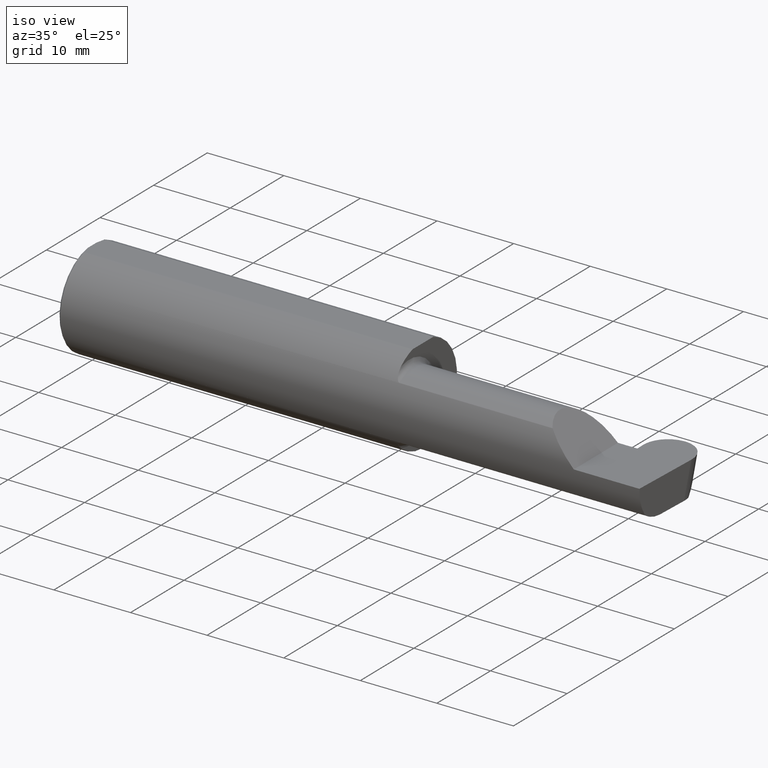
[diagram: clean part render]
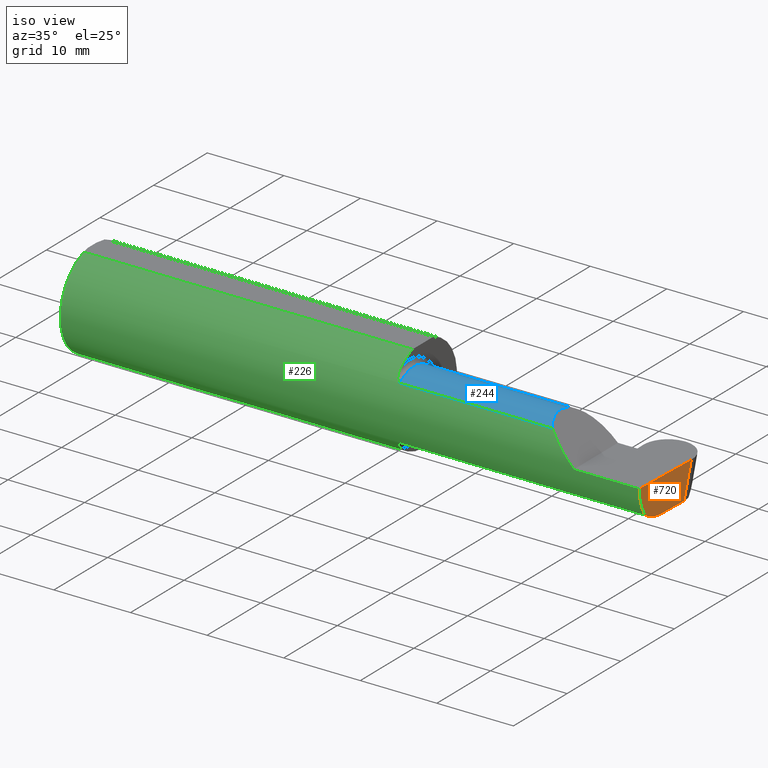
[diagram: same view with three faces highlighted in distinct colors, each labeled with its STEP entity id]
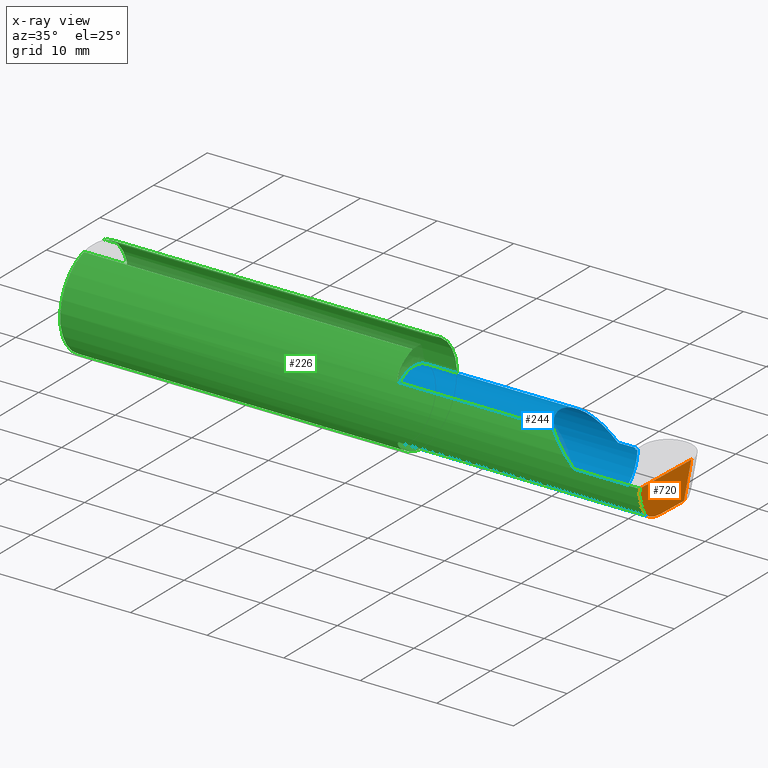
[diagram: x-ray of the same camera — body ghosted, the three highlighted faces saturated]
A machine part, iso view with three faces highlighted in distinct colors.
The next image is the same camera in x-ray (body ghosted, the three faces saturated) — at least one of them is partly hidden behind the body in this view.
Their STEP definitions:

[orange] entity #720 — the highlighted planar face has unit normal (-0.9992, 0.0349, 0.0175).
#6 = VECTOR ( 'NONE', #18, 39.37007874015748854 ) ;
#18 = DIRECTION ( 'NONE',  ( 0.02590004391968268524, 0.2587322210431824976, 0.9656017944882975268 ) ) ;
#24 = DIRECTION ( 'NONE',  ( -0.03489949670249542502, -0.9993908270190959842, 1.222058880457094641E-16 ) ) ;
#27 = CARTESIAN_POINT ( 'NONE',  ( 2.989756814851906697, -0.08644748268070719111, -0.1750000000000000722 ) ) ;
#47 = CARTESIAN_POINT ( 'NONE',  ( 2.999793206199442785, 0.1134305025558126345, 0.000000000000000000 ) ) ;
#76 = LINE ( 'NONE', #27, #345 ) ;
#93 = CARTESIAN_POINT ( 'NONE',  ( 2.999923484675441010, 0.1171611899918090643, 0.000000000000000000 ) ) ;
#108 = PLANE ( 'NONE',  #493 ) ;
#112 = CARTESIAN_POINT ( 'NONE',  ( 2.995099234303557623, 0.06653939388036604619, -0.1750000000000001277 ) ) ;
#137 = EDGE_CURVE ( 'NONE', #745, #559, #229, .T. ) ;
#180 = DIRECTION ( 'NONE',  ( -0.03489949670249543195, -0.9993908270190959842, 0.000000000000000000 ) ) ;
#190 = CARTESIAN_POINT ( 'NONE',  ( 2.986150208451177512, -0.2080850024789288599, -0.1382955322609668858 ) ) ;
#191 = EDGE_CURVE ( 'NONE', #446, #315, #268, .T. ) ;
#194 = CARTESIAN_POINT ( 'NONE',  ( 2.986241469175252128, -0.2498499999999999610, -0.04956584089959703565 ) ) ;
#195 = ORIENTED_EDGE ( 'NONE', *, *, #322, .T. ) ;
#209 = VERTEX_POINT ( 'NONE', #112 ) ;
#211 = DIRECTION ( 'NONE',  ( -0.9992386149554828290, 0.03489418134010812550, 0.01745240643728358798 ) ) ;
#229 = LINE ( 'NONE', #515, #609 ) ;
#267 = CARTESIAN_POINT ( 'NONE',  ( 2.986150208451177512, -0.2080850024789288599, -0.1382955322609668858 ) ) ;
#268 =( BOUNDED_CURVE ( )  B_SPLINE_CURVE ( 3, ( #627, #691, #402, #521 ),
 .UNSPECIFIED., .F., .T. ) 
 B_SPLINE_CURVE_WITH_KNOTS ( ( 4, 4 ),
 ( 0.4474640105399703138, 1.107026853503875419 ),
 .UNSPECIFIED. ) 
 CURVE ( )  GEOMETRIC_REPRESENTATION_ITEM ( )  RATIONAL_B_SPLINE_CURVE ( ( 1.000000000000000000, 0.9640754331822831702, 0.9640754331822831702, 1.000000000000000000 ) ) 
 REPRESENTATION_ITEM ( '' )  );
#285 = ORIENTED_EDGE ( 'NONE', *, *, #191, .T. ) ;
#315 = VERTEX_POINT ( 'NONE', #652 ) ;
#320 = CARTESIAN_POINT ( 'NONE',  ( 2.987107171508847081, -0.2498499999999999888, 0.000000000000000000 ) ) ;
#322 = EDGE_CURVE ( 'NONE', #209, #745, #545, .T. ) ;
#326 = DIRECTION ( 'NONE',  ( -0.03489949670249542502, -0.9993908270190959842, 0.000000000000000000 ) ) ;
#345 = VECTOR ( 'NONE', #24, 39.37007874015748854 ) ;
#346 = ORIENTED_EDGE ( 'NONE', *, *, #560, .F. ) ;
#375 = ORIENTED_EDGE ( 'NONE', *, *, #582, .F. ) ;
#402 = CARTESIAN_POINT ( 'NONE',  ( 2.987885367171879025, -0.1400387324517230192, -0.1750000000000000999 ) ) ;
#446 = VERTEX_POINT ( 'NONE', #267 ) ;
#493 = AXIS2_PLACEMENT_3D ( 'NONE', #93, #211, #326 ) ;
#515 = CARTESIAN_POINT ( 'NONE',  ( 2.999923484675441010, 0.1171611899918090643, 0.000000000000000000 ) ) ;
#519 = EDGE_LOOP ( 'NONE', ( #346, #195, #635, #375, #285 ) ) ;
#521 = CARTESIAN_POINT ( 'NONE',  ( 2.989253867864499092, -0.1008499999999999674, -0.1750000000000000722 ) ) ;
#534 = CARTESIAN_POINT ( 'NONE',  ( 2.999818293584536999, 0.1136811166044124077, 0.0009353043624648335131 ) ) ;
#545 = LINE ( 'NONE', #534, #6 ) ;
#553 = FACE_OUTER_BOUND ( 'NONE', #519, .T. ) ;
#559 = VERTEX_POINT ( 'NONE', #592 ) ;
#560 = EDGE_CURVE ( 'NONE', #209, #315, #76, .T. ) ;
#582 = EDGE_CURVE ( 'NONE', #446, #559, #645, .T. ) ;
#592 = CARTESIAN_POINT ( 'NONE',  ( 2.987107171508847081, -0.2498499999999999888, 0.000000000000000000 ) ) ;
#603 = CARTESIAN_POINT ( 'NONE',  ( 2.985913134503198840, -0.2355204011147991605, -0.09701513151466768792 ) ) ;
#609 = VECTOR ( 'NONE', #180, 39.37007874015748143 ) ;
#627 = CARTESIAN_POINT ( 'NONE',  ( 2.986150208451177512, -0.2080850024789288599, -0.1382955322609668858 ) ) ;
#635 = ORIENTED_EDGE ( 'NONE', *, *, #137, .T. ) ;
#645 =( BOUNDED_CURVE ( )  B_SPLINE_CURVE ( 3, ( #190, #603, #194, #320 ),
 .UNSPECIFIED., .F., .T. ) 
 B_SPLINE_CURVE_WITH_KNOTS ( ( 4, 4 ),
 ( 6.160376845738950280, 6.746954780470608704 ),
 .UNSPECIFIED. ) 
 CURVE ( )  GEOMETRIC_REPRESENTATION_ITEM ( )  RATIONAL_B_SPLINE_CURVE ( ( 1.000000000000000000, 0.9715321379117538569, 0.9715321379117538569, 1.000000000000000000 ) ) 
 REPRESENTATION_ITEM ( '' )  );
#652 = CARTESIAN_POINT ( 'NONE',  ( 2.989253867864499092, -0.1008499999999999674, -0.1750000000000000722 ) ) ;
#691 = CARTESIAN_POINT ( 'NONE',  ( 2.986812263240209653, -0.1771157075472507558, -0.1623092683844332140 ) ) ;
#720 = ADVANCED_FACE ( 'NONE', ( #553 ), #108, .F. ) ;
#745 = VERTEX_POINT ( 'NONE', #47 ) ;

[blue] entity #244 — the highlighted cylindrical surface (partial cylindrical patch) has radius 4.445 mm, axis along (-1, -0, -0).
#2 = VERTEX_POINT ( 'NONE', #100 ) ;
#23 = EDGE_CURVE ( 'NONE', #446, #617, #331, .T. ) ;
#30 = VERTEX_POINT ( 'NONE', #335 ) ;
#34 = ORIENTED_EDGE ( 'NONE', *, *, #167, .T. ) ;
#35 = CARTESIAN_POINT ( 'NONE',  ( 2.409263745716142324, -0.07597241004310675838, 0.2407362542838553388 ) ) ;
#36 = CARTESIAN_POINT ( 'NONE',  ( 1.725000000000000089, -0.1008500000000000646, 0.000000000000000000 ) ) ;
#38 = DIRECTION ( 'NONE',  ( -1.000000000000000000, -6.511907283740594647E-17, -0.000000000000000000 ) ) ;
#40 = DIRECTION ( 'NONE',  ( -1.000000000000000000, -6.511907283740594647E-17, -0.000000000000000000 ) ) ;
#46 = EDGE_LOOP ( 'NONE', ( #597, #557, #632, #403, #34, #198, #602, #364, #417, #152 ) ) ;
#59 = EDGE_CURVE ( 'NONE', #315, #535, #156, .T. ) ;
#64 = VECTOR ( 'NONE', #38, 39.37007874015748143 ) ;
#79 = VECTOR ( 'NONE', #40, 39.37007874015748143 ) ;
#99 = CARTESIAN_POINT ( 'NONE',  ( 1.725000000000000089, -0.2080850024789289432, 0.1382955322609669135 ) ) ;
#100 = CARTESIAN_POINT ( 'NONE',  ( 2.511704467739031887, -0.2080850024789288599, 0.1382955322609669413 ) ) ;
#126 = VECTOR ( 'NONE', #392, 39.37007874015748143 ) ;
#133 = DIRECTION ( 'NONE',  ( -1.000000000000000000, -6.511907283740594647E-17, -0.000000000000000000 ) ) ;
#139 = CARTESIAN_POINT ( 'NONE',  ( 2.753585400763539415, -0.1008500000000000091, -0.1750000000000000444 ) ) ;
#152 = ORIENTED_EDGE ( 'NONE', *, *, #191, .F. ) ;
#156 = LINE ( 'NONE', #161, #729 ) ;
#160 = CARTESIAN_POINT ( 'NONE',  ( 1.700000000000000178, 0.07404339472834149671, -0.006107411922944308742 ) ) ;
#161 = CARTESIAN_POINT ( 'NONE',  ( 3.402190948718818664, -0.1008499999999999674, -0.1750000000000000722 ) ) ;
#167 = EDGE_CURVE ( 'NONE', #212, #30, #240, .T. ) ;
#172 = CARTESIAN_POINT ( 'NONE',  ( 1.700000000000000178, 0.07414999999999995206, 1.592040838891556877E-16 ) ) ;
#177 = FACE_OUTER_BOUND ( 'NONE', #46, .T. ) ;
#191 = EDGE_CURVE ( 'NONE', #446, #315, #268, .T. ) ;
#198 = ORIENTED_EDGE ( 'NONE', *, *, #370, .F. ) ;
#200 = CARTESIAN_POINT ( 'NONE',  ( 2.739220100782099543, 0.07404339472834139957, -0.006107411922948981220 ) ) ;
#206 = CARTESIAN_POINT ( 'NONE',  ( 2.236894750000000265, -0.2080850024789289432, 0.1382955322609668858 ) ) ;
#212 = VERTEX_POINT ( 'NONE', #580 ) ;
#224 = B_SPLINE_CURVE_WITH_KNOTS ( 'NONE', 3,
 ( #419, #434, #669, #441 ),
 .UNSPECIFIED., .F., .F.,
 ( 4, 4 ),
 ( 0.000000000000000000, 1.000000000000000000 ),
 .UNSPECIFIED. ) ;
#236 = VECTOR ( 'NONE', #344, 39.37007874015748143 ) ;
#240 = LINE ( 'NONE', #172, #236 ) ;
#244 = ADVANCED_FACE ( 'NONE', ( #177 ), #422, .T. ) ;
#258 = CARTESIAN_POINT ( 'NONE',  ( 1.725000000000000089, -0.2080850024789288599, -0.1382955322609669135 ) ) ;
#267 = CARTESIAN_POINT ( 'NONE',  ( 2.986150208451177512, -0.2080850024789288599, -0.1382955322609668858 ) ) ;
#268 =( BOUNDED_CURVE ( )  B_SPLINE_CURVE ( 3, ( #627, #691, #402, #521 ),
 .UNSPECIFIED., .F., .T. ) 
 B_SPLINE_CURVE_WITH_KNOTS ( ( 4, 4 ),
 ( 0.4474640105399703138, 1.107026853503875419 ),
 .UNSPECIFIED. ) 
 CURVE ( )  GEOMETRIC_REPRESENTATION_ITEM ( )  RATIONAL_B_SPLINE_CURVE ( ( 1.000000000000000000, 0.9640754331822831702, 0.9640754331822831702, 1.000000000000000000 ) ) 
 REPRESENTATION_ITEM ( '' )  );
#315 = VERTEX_POINT ( 'NONE', #652 ) ;
#331 = LINE ( 'NONE', #615, #64 ) ;
#335 = CARTESIAN_POINT ( 'NONE',  ( 2.739326706053758276, 0.07414999999999984104, 0.000000000000000000 ) ) ;
#337 = LINE ( 'NONE', #160, #79 ) ;
#344 = DIRECTION ( 'NONE',  ( 1.000000000000000000, 6.511907283740594647E-17, 0.000000000000000000 ) ) ;
#364 = ORIENTED_EDGE ( 'NONE', *, *, #566, .F. ) ;
#365 = CARTESIAN_POINT ( 'NONE',  ( 2.753553955298210898, -0.001152430219569880584, -0.1750000000000001277 ) ) ;
#369 = CARTESIAN_POINT ( 'NONE',  ( 1.700000000000000178, -0.1008500000000000646, 0.000000000000000000 ) ) ;
#370 = EDGE_CURVE ( 'NONE', #479, #30, #224, .T. ) ;
#383 = LINE ( 'NONE', #206, #126 ) ;
#388 = VERTEX_POINT ( 'NONE', #99 ) ;
#390 = DIRECTION ( 'NONE',  ( -1.000000000000000000, -0.000000000000000000, -0.000000000000000000 ) ) ;
#392 = DIRECTION ( 'NONE',  ( 1.000000000000000000, 6.511907283740594647E-17, 0.000000000000000000 ) ) ;
#397 =( BOUNDED_CURVE ( )  B_SPLINE_CURVE ( 3, ( #565, #35, #616, #569 ),
 .UNSPECIFIED., .F., .T. ) 
 B_SPLINE_CURVE_WITH_KNOTS ( ( 4, 4 ),
 ( 5.623622464215682015, 7.853981633974482790 ),
 .UNSPECIFIED. ) 
 CURVE ( )  GEOMETRIC_REPRESENTATION_ITEM ( )  RATIONAL_B_SPLINE_CURVE ( ( 1.000000000000000000, 0.6266774836123999437, 0.6266774836123999437, 1.000000000000000000 ) ) 
 REPRESENTATION_ITEM ( '' )  );
#402 = CARTESIAN_POINT ( 'NONE',  ( 2.987885367171879025, -0.1400387324517230192, -0.1750000000000000999 ) ) ;
#403 = ORIENTED_EDGE ( 'NONE', *, *, #740, .T. ) ;
#417 = ORIENTED_EDGE ( 'NONE', *, *, #59, .F. ) ;
#419 = CARTESIAN_POINT ( 'NONE',  ( 2.739220100782099543, 0.07404339472834139957, -0.006107411922948981220 ) ) ;
#422 = CYLINDRICAL_SURFACE ( 'NONE', #654, 0.1750000000000000444 ) ;
#434 = CARTESIAN_POINT ( 'NONE',  ( 2.739255635872652750, 0.07407892981889421802, -0.004071607948632659062 ) ) ;
#438 = DIRECTION ( 'NONE',  ( -1.000000000000000000, -6.511907283740594647E-17, -0.000000000000000000 ) ) ;
#441 = CARTESIAN_POINT ( 'NONE',  ( 2.739326706053758276, 0.07414999999999984104, 0.000000000000000000 ) ) ;
#445 = EDGE_CURVE ( 'NONE', #388, #617, #525, .T. ) ;
#446 = VERTEX_POINT ( 'NONE', #267 ) ;
#479 = VERTEX_POINT ( 'NONE', #200 ) ;
#483 = CARTESIAN_POINT ( 'NONE',  ( 2.750478392166241903, 0.07404339472834139957, -0.006107411922948607387 ) ) ;
#489 = CARTESIAN_POINT ( 'NONE',  ( 2.753585400763539415, -0.1008500000000000091, -0.1750000000000000444 ) ) ;
#512 = VERTEX_POINT ( 'NONE', #648 ) ;
#521 = CARTESIAN_POINT ( 'NONE',  ( 2.989253867864499092, -0.1008499999999999674, -0.1750000000000000722 ) ) ;
#525 = CIRCLE ( 'NONE', #630, 0.1750000000000000444 ) ;
#535 = VERTEX_POINT ( 'NONE', #139 ) ;
#557 = ORIENTED_EDGE ( 'NONE', *, *, #445, .F. ) ;
#563 = DIRECTION ( 'NONE',  ( 0.000000000000000000, -1.000000000000000000, 0.000000000000000000 ) ) ;
#565 = CARTESIAN_POINT ( 'NONE',  ( 2.511704467739031887, -0.2080850024789288599, 0.1382955322609669413 ) ) ;
#566 = EDGE_CURVE ( 'NONE', #535, #512, #601, .T. ) ;
#569 = CARTESIAN_POINT ( 'NONE',  ( 2.650000000000000355, 0.07415000000000000757, 1.592040838891556877E-16 ) ) ;
#580 = CARTESIAN_POINT ( 'NONE',  ( 2.650000000000000355, 0.07415000000000000757, 1.592040838891556877E-16 ) ) ;
#597 = ORIENTED_EDGE ( 'NONE', *, *, #23, .T. ) ;
#601 =( BOUNDED_CURVE ( )  B_SPLINE_CURVE ( 3, ( #489, #365, #711, #483 ),
 .UNSPECIFIED., .F., .F. ) 
 B_SPLINE_CURVE_WITH_KNOTS ( ( 4, 4 ),
 ( 3.159045946109732661, 4.694935687864679963 ),
 .UNSPECIFIED. ) 
 CURVE ( )  GEOMETRIC_REPRESENTATION_ITEM ( )  RATIONAL_B_SPLINE_CURVE ( ( 1.000000000000000000, 0.8128932002257818201, 0.8128932002257818201, 1.000000000000000000 ) ) 
 REPRESENTATION_ITEM ( '' )  );
#602 = ORIENTED_EDGE ( 'NONE', *, *, #682, .F. ) ;
#615 = CARTESIAN_POINT ( 'NONE',  ( 2.236894750000000265, -0.2080850024789289432, -0.1382955322609668858 ) ) ;
#616 = CARTESIAN_POINT ( 'NONE',  ( 2.482823929317965028, 0.07415000000000000757, 0.1671760706820337450 ) ) ;
#617 = VERTEX_POINT ( 'NONE', #258 ) ;
#627 = CARTESIAN_POINT ( 'NONE',  ( 2.986150208451177512, -0.2080850024789288599, -0.1382955322609668858 ) ) ;
#630 = AXIS2_PLACEMENT_3D ( 'NONE', #36, #438, #563 ) ;
#632 = ORIENTED_EDGE ( 'NONE', *, *, #689, .T. ) ;
#641 = DIRECTION ( 'NONE',  ( 0.000000000000000000, -1.000000000000000000, 0.000000000000000000 ) ) ;
#648 = CARTESIAN_POINT ( 'NONE',  ( 2.750478392166241903, 0.07404339472834139957, -0.006107411922948607387 ) ) ;
#652 = CARTESIAN_POINT ( 'NONE',  ( 2.989253867864499092, -0.1008499999999999674, -0.1750000000000000722 ) ) ;
#654 = AXIS2_PLACEMENT_3D ( 'NONE', #369, #133, #641 ) ;
#669 = CARTESIAN_POINT ( 'NONE',  ( 2.739291170963205069, 0.07411446490944702259, -0.002035803974316329531 ) ) ;
#682 = EDGE_CURVE ( 'NONE', #512, #479, #337, .T. ) ;
#689 = EDGE_CURVE ( 'NONE', #388, #2, #383, .T. ) ;
#691 = CARTESIAN_POINT ( 'NONE',  ( 2.986812263240209653, -0.1771157075472507558, -0.1623092683844332140 ) ) ;
#711 = CARTESIAN_POINT ( 'NONE',  ( 2.752279901668355677, 0.07056399972053564729, -0.1057442486376066609 ) ) ;
#729 = VECTOR ( 'NONE', #390, 39.37007874015748143 ) ;
#740 = EDGE_CURVE ( 'NONE', #2, #212, #397, .T. ) ;

[green] entity #226 — the highlighted cylindrical surface (partial cylindrical patch) has radius 6.3462 mm, axis along (-1, -0, -0).
#2 = VERTEX_POINT ( 'NONE', #100 ) ;
#7 = CIRCLE ( 'NONE', #183, 0.2498499999999999888 ) ;
#8 = CARTESIAN_POINT ( 'NONE',  ( 1.700000000000000178, -0.1616050818046604054, -0.1905487340154980724 ) ) ;
#10 = CARTESIAN_POINT ( 'NONE',  ( 0.000000000000000000, -0.07650098038587520299, 0.2378499999999998671 ) ) ;
#11 =( BOUNDED_CURVE ( )  B_SPLINE_CURVE ( 3, ( #82, #660, #498, #203 ),
 .UNSPECIFIED., .F., .T. ) 
 B_SPLINE_CURVE_WITH_KNOTS ( ( 4, 4 ),
 ( 4.712388980384689674, 5.298966915116348986 ),
 .UNSPECIFIED. ) 
 CURVE ( )  GEOMETRIC_REPRESENTATION_ITEM ( )  RATIONAL_B_SPLINE_CURVE ( ( 1.000000000000000000, 0.9715321379117536349, 0.9715321379117536349, 1.000000000000000000 ) ) 
 REPRESENTATION_ITEM ( '' )  );
#14 = CARTESIAN_POINT ( 'NONE',  ( 1.701385488563270210, -0.1808287530430325030, -0.1728790649396287071 ) ) ;
#17 = B_SPLINE_CURVE_WITH_KNOTS ( 'NONE', 3,
 ( #590, #310, #484, #538, #709, #83, #531, #701, #657, #14, #304, #478 ),
 .UNSPECIFIED., .F., .F.,
 ( 4, 2, 2, 2, 2, 4 ),
 ( 1.964491429041408615E-07, 0.0001260981470478429213, 0.0002519998449527816628, 0.0005038032407626452137, 0.001007410032382372424, 0.002014623615621820123 ),
 .UNSPECIFIED. ) ;
#22 = ORIENTED_EDGE ( 'NONE', *, *, #376, .T. ) ;
#23 = EDGE_CURVE ( 'NONE', #446, #617, #331, .T. ) ;
#38 = DIRECTION ( 'NONE',  ( -1.000000000000000000, -6.511907283740594647E-17, -0.000000000000000000 ) ) ;
#45 = CARTESIAN_POINT ( 'NONE',  ( 1.700000000000000178, 0.07650098038587520299, 0.2378499999999998671 ) ) ;
#64 = VECTOR ( 'NONE', #38, 39.37007874015748143 ) ;
#69 = EDGE_CURVE ( 'NONE', #274, #164, #677, .T. ) ;
#77 = AXIS2_PLACEMENT_3D ( 'NONE', #738, #338, #552 ) ;
#82 = CARTESIAN_POINT ( 'NONE',  ( 2.650000000000000355, -0.2498499999999999610, 4.286263797015729199E-17 ) ) ;
#83 = CARTESIAN_POINT ( 'NONE',  ( 1.714302603425052807, -0.2041009206016211885, -0.1441313430770041204 ) ) ;
#91 = B_SPLINE_CURVE_WITH_KNOTS ( 'NONE', 3,
 ( #718, #440, #199, #129, #362, #501, #275, #98, #561, #726, #455, #329, #339, #504 ),
 .UNSPECIFIED., .F., .F.,
 ( 4, 2, 2, 2, 2, 2, 4 ),
 ( 0.0003834465838148152454, 0.0008781406165086708474, 0.001372834649202526449, 0.001867528681896382051, 0.002114875698243305190, 0.002238549206416759821, 0.002362222714590214018 ),
 .UNSPECIFIED. ) ;
#94 = EDGE_CURVE ( 'NONE', #539, #306, #529, .T. ) ;
#98 = CARTESIAN_POINT ( 'NONE',  ( 1.712616400345755130, -0.2024684335577101590, 0.1464246884265639759 ) ) ;
#99 = CARTESIAN_POINT ( 'NONE',  ( 1.725000000000000089, -0.2080850024789289432, 0.1382955322609669135 ) ) ;
#100 = CARTESIAN_POINT ( 'NONE',  ( 2.511704467739031887, -0.2080850024789288599, 0.1382955322609669413 ) ) ;
#119 = CARTESIAN_POINT ( 'NONE',  ( 0.000000000000000000, 0.000000000000000000, 0.000000000000000000 ) ) ;
#125 = VECTOR ( 'NONE', #250, 39.37007874015748143 ) ;
#126 = VECTOR ( 'NONE', #392, 39.37007874015748143 ) ;
#129 = CARTESIAN_POINT ( 'NONE',  ( 1.701849548162864600, -0.1805300287242673773, 0.1728462070311780896 ) ) ;
#146 = EDGE_CURVE ( 'NONE', #559, #423, #163, .T. ) ;
#157 = DIRECTION ( 'NONE',  ( 1.000000000000000000, 6.511907283740594647E-17, 0.000000000000000000 ) ) ;
#163 = LINE ( 'NONE', #342, #273 ) ;
#164 = VERTEX_POINT ( 'NONE', #625 ) ;
#168 = DIRECTION ( 'NONE',  ( 1.000000000000000000, 0.000000000000000000, 0.000000000000000000 ) ) ;
#170 = VECTOR ( 'NONE', #168, 39.37007874015748143 ) ;
#183 = AXIS2_PLACEMENT_3D ( 'NONE', #722, #606, #428 ) ;
#190 = CARTESIAN_POINT ( 'NONE',  ( 2.986150208451177512, -0.2080850024789288599, -0.1382955322609668858 ) ) ;
#194 = CARTESIAN_POINT ( 'NONE',  ( 2.986241469175252128, -0.2498499999999999610, -0.04956584089959703565 ) ) ;
#199 = CARTESIAN_POINT ( 'NONE',  ( 1.700367168219774516, -0.1713400252854603290, 0.1819601557798506408 ) ) ;
#203 = CARTESIAN_POINT ( 'NONE',  ( 2.511704467739031887, -0.2080850024789288599, 0.1382955322609669413 ) ) ;
#206 = CARTESIAN_POINT ( 'NONE',  ( 2.236894750000000265, -0.2080850024789289432, 0.1382955322609668858 ) ) ;
#226 = ADVANCED_FACE ( 'NONE', ( #634 ), #697, .T. ) ;
#230 = VERTEX_POINT ( 'NONE', #8 ) ;
#234 = ORIENTED_EDGE ( 'NONE', *, *, #694, .F. ) ;
#246 = ORIENTED_EDGE ( 'NONE', *, *, #620, .T. ) ;
#248 = ORIENTED_EDGE ( 'NONE', *, *, #23, .F. ) ;
#250 = DIRECTION ( 'NONE',  ( -1.000000000000000000, -0.000000000000000000, -0.000000000000000000 ) ) ;
#258 = CARTESIAN_POINT ( 'NONE',  ( 1.725000000000000089, -0.2080850024789288599, -0.1382955322609669135 ) ) ;
#260 = CARTESIAN_POINT ( 'NONE',  ( 0.009999999999999856226, 0.000000000000000000, 0.000000000000000000 ) ) ;
#267 = CARTESIAN_POINT ( 'NONE',  ( 2.986150208451177512, -0.2080850024789288599, -0.1382955322609668858 ) ) ;
#269 = EDGE_LOOP ( 'NONE', ( #248, #475, #382, #246, #707, #628, #371, #311, #22, #451, #278, #234, #604 ) ) ;
#270 = EDGE_CURVE ( 'NONE', #399, #164, #359, .T. ) ;
#273 = VECTOR ( 'NONE', #463, 39.37007874015748143 ) ;
#274 = VERTEX_POINT ( 'NONE', #374 ) ;
#275 = CARTESIAN_POINT ( 'NONE',  ( 1.708182335268384477, -0.1972192205116130026, 0.1535061413537210928 ) ) ;
#278 = ORIENTED_EDGE ( 'NONE', *, *, #270, .F. ) ;
#292 = DIRECTION ( 'NONE',  ( -1.000000000000000000, -0.000000000000000000, -0.000000000000000000 ) ) ;
#303 = EDGE_CURVE ( 'NONE', #617, #230, #17, .T. ) ;
#304 = CARTESIAN_POINT ( 'NONE',  ( 1.699999999999999956, -0.1716188362992553673, -0.1820560320165480472 ) ) ;
#306 = VERTEX_POINT ( 'NONE', #318 ) ;
#310 = CARTESIAN_POINT ( 'NONE',  ( 1.723318040126429640, -0.2080850024789289987, -0.1382955322609668303 ) ) ;
#311 = ORIENTED_EDGE ( 'NONE', *, *, #94, .F. ) ;
#318 = CARTESIAN_POINT ( 'NONE',  ( 1.700000000000000178, -0.07650098038587523075, 0.2378499999999998671 ) ) ;
#320 = CARTESIAN_POINT ( 'NONE',  ( 2.987107171508847081, -0.2498499999999999888, 0.000000000000000000 ) ) ;
#329 = CARTESIAN_POINT ( 'NONE',  ( 1.721718393013768722, -0.2077830475237240626, 0.1387513848711937892 ) ) ;
#331 = LINE ( 'NONE', #615, #64 ) ;
#338 = DIRECTION ( 'NONE',  ( 1.000000000000000000, 0.000000000000000000, 0.000000000000000000 ) ) ;
#339 = CARTESIAN_POINT ( 'NONE',  ( 1.723329956043142763, -0.2080850024798589493, 0.1382955322595676717 ) ) ;
#342 = CARTESIAN_POINT ( 'NONE',  ( 4.499279347985562423E-32, -0.2498499999999999610, 3.673940397442054938E-16 ) ) ;
#359 = LINE ( 'NONE', #496, #125 ) ;
#362 = CARTESIAN_POINT ( 'NONE',  ( 1.702968662030528879, -0.1849684355203377317, 0.1680843977756269203 ) ) ;
#371 = ORIENTED_EDGE ( 'NONE', *, *, #589, .F. ) ;
#374 = CARTESIAN_POINT ( 'NONE',  ( 0.009999999999999856226, 0.000000000000000000, -0.2498499999999999888 ) ) ;
#376 = EDGE_CURVE ( 'NONE', #539, #274, #584, .T. ) ;
#382 = ORIENTED_EDGE ( 'NONE', *, *, #146, .T. ) ;
#383 = LINE ( 'NONE', #206, #126 ) ;
#387 = CARTESIAN_POINT ( 'NONE',  ( 1.700000000000000178, -0.1616050818046604054, 0.1905487340154980724 ) ) ;
#388 = VERTEX_POINT ( 'NONE', #99 ) ;
#392 = DIRECTION ( 'NONE',  ( 1.000000000000000000, 6.511907283740594647E-17, 0.000000000000000000 ) ) ;
#399 = VERTEX_POINT ( 'NONE', #45 ) ;
#423 = VERTEX_POINT ( 'NONE', #510 ) ;
#428 = DIRECTION ( 'NONE',  ( 0.000000000000000000, 1.000000000000000000, 0.000000000000000000 ) ) ;
#440 = CARTESIAN_POINT ( 'NONE',  ( 1.700000000000000178, -0.1665641037263009827, 0.1863429692936361959 ) ) ;
#446 = VERTEX_POINT ( 'NONE', #267 ) ;
#451 = ORIENTED_EDGE ( 'NONE', *, *, #69, .T. ) ;
#455 = CARTESIAN_POINT ( 'NONE',  ( 1.718876997637614812, -0.2068363917296599519, 0.1401586554522230854 ) ) ;
#458 = DIRECTION ( 'NONE',  ( 0.000000000000000000, 1.000000000000000000, 0.000000000000000000 ) ) ;
#463 = DIRECTION ( 'NONE',  ( -1.000000000000000000, -0.000000000000000000, -0.000000000000000000 ) ) ;
#475 = ORIENTED_EDGE ( 'NONE', *, *, #582, .T. ) ;
#478 = CARTESIAN_POINT ( 'NONE',  ( 1.700000000000000178, -0.1616050818046604054, -0.1905487340154980724 ) ) ;
#484 = CARTESIAN_POINT ( 'NONE',  ( 1.721700027347579320, -0.2077785947292767055, -0.1387580622202827241 ) ) ;
#494 = CARTESIAN_POINT ( 'NONE',  ( 0.009999999999999856226, -0.07650098038587520299, 0.2378499999999998671 ) ) ;
#496 = CARTESIAN_POINT ( 'NONE',  ( 0.000000000000000000, 0.07650098038587520299, 0.2378499999999998671 ) ) ;
#498 = CARTESIAN_POINT ( 'NONE',  ( 2.552984868485331571, -0.2355204011147991605, 0.09701513151466779894 ) ) ;
#501 = CARTESIAN_POINT ( 'NONE',  ( 1.706159563508734101, -0.1933019864360848161, 0.1584298865564832404 ) ) ;
#504 = CARTESIAN_POINT ( 'NONE',  ( 1.725000000000000089, -0.2080850024789289432, 0.1382955322609669135 ) ) ;
#510 = CARTESIAN_POINT ( 'NONE',  ( 2.650000000000000355, -0.2498499999999999610, 4.286263797015729199E-17 ) ) ;
#524 = DIRECTION ( 'NONE',  ( 0.000000000000000000, 0.000000000000000000, 1.000000000000000000 ) ) ;
#529 = LINE ( 'NONE', #10, #170 ) ;
#531 = CARTESIAN_POINT ( 'NONE',  ( 1.712579853086619641, -0.2024300470081734638, -0.1464774911482687458 ) ) ;
#536 = CIRCLE ( 'NONE', #679, 0.2498499999999999888 ) ;
#538 = CARTESIAN_POINT ( 'NONE',  ( 1.718863362722770960, -0.2068301641248768974, -0.1401678546132361647 ) ) ;
#539 = VERTEX_POINT ( 'NONE', #494 ) ;
#552 = DIRECTION ( 'NONE',  ( 0.000000000000000000, 0.000000000000000000, -1.000000000000000000 ) ) ;
#559 = VERTEX_POINT ( 'NONE', #592 ) ;
#561 = CARTESIAN_POINT ( 'NONE',  ( 1.714343523383978329, -0.2041337200786081663, 0.1440846171672512943 ) ) ;
#562 = AXIS2_PLACEMENT_3D ( 'NONE', #119, #292, #524 ) ;
#582 = EDGE_CURVE ( 'NONE', #446, #559, #645, .T. ) ;
#584 = CIRCLE ( 'NONE', #716, 0.2498499999999999888 ) ;
#589 = EDGE_CURVE ( 'NONE', #306, #659, #7, .T. ) ;
#590 = CARTESIAN_POINT ( 'NONE',  ( 1.725000000000000089, -0.2080850024789288599, -0.1382955322609669135 ) ) ;
#592 = CARTESIAN_POINT ( 'NONE',  ( 2.987107171508847081, -0.2498499999999999888, 0.000000000000000000 ) ) ;
#603 = CARTESIAN_POINT ( 'NONE',  ( 2.985913134503198840, -0.2355204011147991605, -0.09701513151466768792 ) ) ;
#604 = ORIENTED_EDGE ( 'NONE', *, *, #303, .F. ) ;
#606 = DIRECTION ( 'NONE',  ( 1.000000000000000000, 6.511907283740594647E-17, 0.000000000000000000 ) ) ;
#615 = CARTESIAN_POINT ( 'NONE',  ( 2.236894750000000265, -0.2080850024789289432, -0.1382955322609668858 ) ) ;
#617 = VERTEX_POINT ( 'NONE', #258 ) ;
#618 = DIRECTION ( 'NONE',  ( 1.000000000000000000, 0.000000000000000000, 0.000000000000000000 ) ) ;
#620 = EDGE_CURVE ( 'NONE', #423, #2, #11, .T. ) ;
#625 = CARTESIAN_POINT ( 'NONE',  ( 0.009999999999999856226, 0.07650098038587520299, 0.2378499999999998671 ) ) ;
#626 = EDGE_CURVE ( 'NONE', #659, #388, #91, .T. ) ;
#628 = ORIENTED_EDGE ( 'NONE', *, *, #626, .F. ) ;
#634 = FACE_OUTER_BOUND ( 'NONE', #269, .T. ) ;
#645 =( BOUNDED_CURVE ( )  B_SPLINE_CURVE ( 3, ( #190, #603, #194, #320 ),
 .UNSPECIFIED., .F., .T. ) 
 B_SPLINE_CURVE_WITH_KNOTS ( ( 4, 4 ),
 ( 6.160376845738950280, 6.746954780470608704 ),
 .UNSPECIFIED. ) 
 CURVE ( )  GEOMETRIC_REPRESENTATION_ITEM ( )  RATIONAL_B_SPLINE_CURVE ( ( 1.000000000000000000, 0.9715321379117538569, 0.9715321379117538569, 1.000000000000000000 ) ) 
 REPRESENTATION_ITEM ( '' )  );
#657 = CARTESIAN_POINT ( 'NONE',  ( 1.706147634408388347, -0.1932733126899459919, -0.1584637047788198805 ) ) ;
#659 = VERTEX_POINT ( 'NONE', #387 ) ;
#660 = CARTESIAN_POINT ( 'NONE',  ( 2.600434159100402987, -0.2498499999999999610, 0.04956584089959713973 ) ) ;
#663 = CARTESIAN_POINT ( 'NONE',  ( 1.700000000000000178, 0.000000000000000000, 0.000000000000000000 ) ) ;
#677 = CIRCLE ( 'NONE', #77, 0.2498499999999999888 ) ;
#679 = AXIS2_PLACEMENT_3D ( 'NONE', #663, #157, #458 ) ;
#689 = EDGE_CURVE ( 'NONE', #388, #2, #383, .T. ) ;
#694 = EDGE_CURVE ( 'NONE', #230, #399, #536, .T. ) ;
#697 = CYLINDRICAL_SURFACE ( 'NONE', #562, 0.2498499999999999888 ) ;
#701 = CARTESIAN_POINT ( 'NONE',  ( 1.708176740666625282, -0.1972027065478071661, -0.1535263573771915024 ) ) ;
#707 = ORIENTED_EDGE ( 'NONE', *, *, #689, .F. ) ;
#709 = CARTESIAN_POINT ( 'NONE',  ( 1.717611663768900510, -0.2061921161193829288, -0.1411075319999378352 ) ) ;
#716 = AXIS2_PLACEMENT_3D ( 'NONE', #260, #618, #723 ) ;
#718 = CARTESIAN_POINT ( 'NONE',  ( 1.700000000000000178, -0.1616050818046604054, 0.1905487340154980724 ) ) ;
#722 = CARTESIAN_POINT ( 'NONE',  ( 1.700000000000000178, 0.000000000000000000, 0.000000000000000000 ) ) ;
#723 = DIRECTION ( 'NONE',  ( 0.000000000000000000, 0.000000000000000000, -1.000000000000000000 ) ) ;
#726 = CARTESIAN_POINT ( 'NONE',  ( 1.717647060162627914, -0.2062109266231180460, 0.1410799729252291690 ) ) ;
#738 = CARTESIAN_POINT ( 'NONE',  ( 0.009999999999999856226, 0.000000000000000000, 0.000000000000000000 ) ) ;